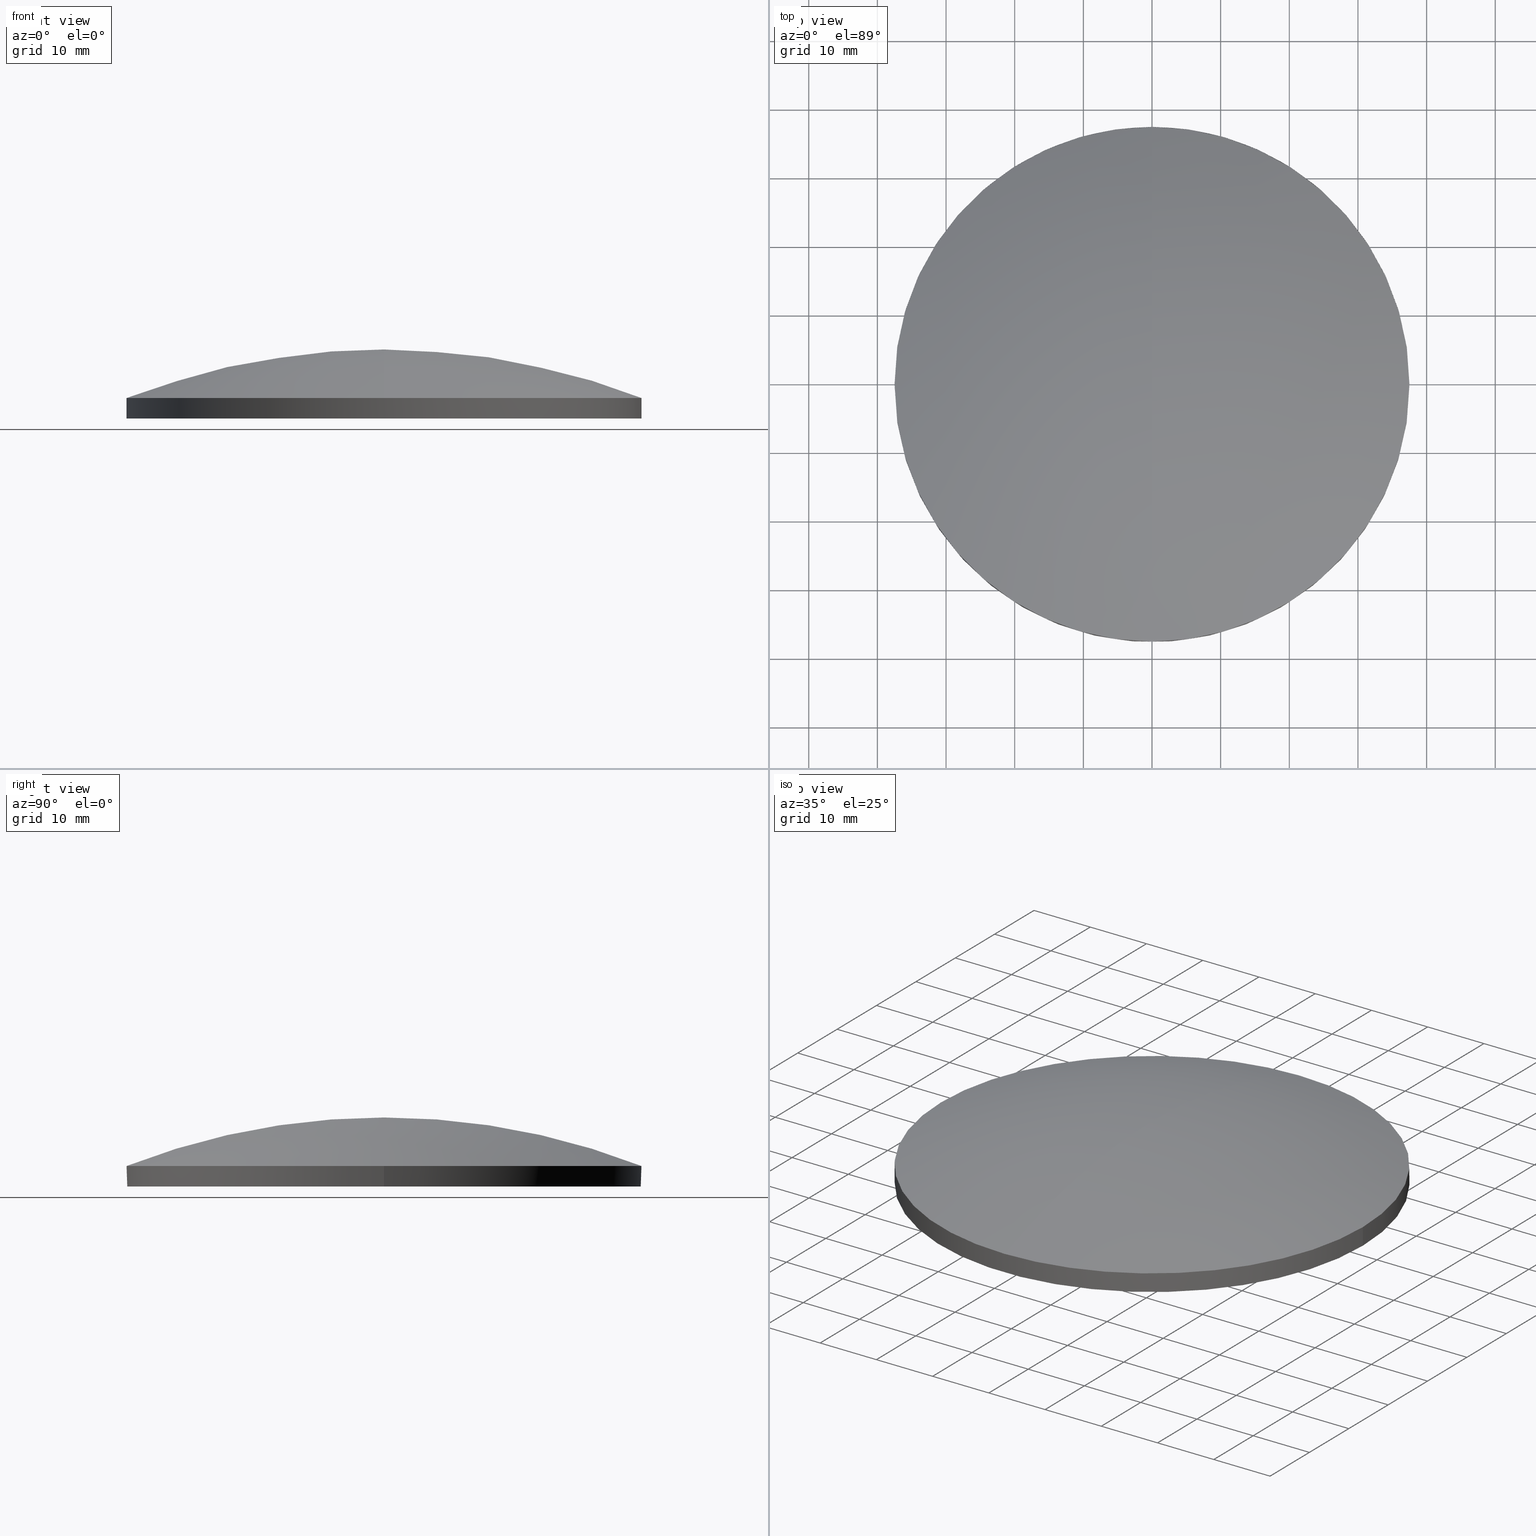
[diagram: canonical four-view strip — front | top / right | iso, engineering-drawing reading convention]
A machine part, canonical four-view strip (front | top / right | iso — engineering-drawing reading convention). The complete STEP part file that produces these views, byte-faithful:
ISO-10303-21;
HEADER;
FILE_DESCRIPTION (( 'STEP AP214' ),
    '1' );
FILE_NAME ('4468-E0W.STEP',
    '2009-12-21T17:02:42',
    ( ' ' ),
    ( ' ' ),
    'SwSTEP 2.0',
    'SolidWorks 2009',
    '' );
FILE_SCHEMA (( 'AUTOMOTIVE_DESIGN' ));
ENDSEC;

DATA;
#1 =( GEOMETRIC_REPRESENTATION_CONTEXT ( 3 ) GLOBAL_UNCERTAINTY_ASSIGNED_CONTEXT ( ( #44 ) ) GLOBAL_UNIT_ASSIGNED_CONTEXT ( ( #91, #46, #45 ) ) REPRESENTATION_CONTEXT ( 'NONE', 'WORKASPACE' ) );
#2 = AXIS2_PLACEMENT_3D ( 'NONE', #3, #4, #5 ) ;
#3 = CARTESIAN_POINT ( 'NONE',  ( 0.0000000000000000000, 0.0000000000000000000, 4.308132045400366600 ) ) ;
#4 = DIRECTION ( 'NONE',  ( -0.0000000000000000000, -0.0000000000000000000, 1.000000000000000000 ) ) ;
#5 = DIRECTION ( 'NONE',  ( 1.000000000000000000, 0.0000000000000000000, 0.0000000000000000000 ) ) ;
#6 = STYLED_ITEM ( 'NONE', ( #8 ), #70 ) ;
#7 = PRESENTATION_LAYER_ASSIGNMENT (  '', '', ( #6 ) ) ;
#8 = PRESENTATION_STYLE_ASSIGNMENT (( #24 ) ) ;
#9 = MECHANICAL_DESIGN_GEOMETRIC_PRESENTATION_REPRESENTATION (  '', ( #6 ), #15 ) ;
#10 =( LENGTH_UNIT ( ) NAMED_UNIT ( * ) SI_UNIT ( .MILLI., .METRE. ) );
#11 = DIRECTION ( 'NONE',  ( 0.0000000000000000000, 1.000000000000000000, 0.0000000000000000000 ) ) ;
#12 = DIRECTION ( 'NONE',  ( -1.000000000000000000, 0.0000000000000000000, 0.0000000000000000000 ) ) ;
#13 =( NAMED_UNIT ( * ) PLANE_ANGLE_UNIT ( ) SI_UNIT ( $, .RADIAN. ) );
#14 =( NAMED_UNIT ( * ) SI_UNIT ( $, .STERADIAN. ) SOLID_ANGLE_UNIT ( ) );
#15 =( GEOMETRIC_REPRESENTATION_CONTEXT ( 3 ) GLOBAL_UNCERTAINTY_ASSIGNED_CONTEXT ( ( #16 ) ) GLOBAL_UNIT_ASSIGNED_CONTEXT ( ( #10, #13, #14 ) ) REPRESENTATION_CONTEXT ( 'NONE', 'WORKASPACE' ) );
#16 = UNCERTAINTY_MEASURE_WITH_UNIT (LENGTH_MEASURE( 1.000000000000000100E-005 ), #10, 'distance_accuracy_value', 'NONE');
#17 = CYLINDRICAL_SURFACE ( 'NONE', #2, 37.49999999999999300 ) ;
#18 = AXIS2_PLACEMENT_3D ( 'NONE', #20, #12, #11 ) ;
#19 = SPHERICAL_SURFACE ( 'NONE', #18, 103.0099999999999900 ) ;
#20 = CARTESIAN_POINT ( 'NONE',  ( 0.0000000000000000000, 0.0000000000000000000, -97.97999999999999000 ) ) ;
#21 = FILL_AREA_STYLE_COLOUR ( '', #22 ) ;
#22 = COLOUR_RGB ( '',0.9568627450980391500, 0.9490196078431372100, 0.9607843137254902200 ) ;
#23 = FACE_OUTER_BOUND ( 'NONE', #50, .T. ) ;
#24 = SURFACE_STYLE_USAGE ( .BOTH. , #25 ) ;
#25 = SURFACE_SIDE_STYLE ('',( #26 ) ) ;
#26 = SURFACE_STYLE_FILL_AREA ( #27 ) ;
#27 = FILL_AREA_STYLE ('',( #21 ) ) ;
#28 = DIRECTION ( 'NONE',  ( 0.0000000000000000000, 0.0000000000000000000, -1.000000000000000000 ) ) ;
#29 = DIRECTION ( 'NONE',  ( 1.000000000000000000, 0.0000000000000000000, 0.0000000000000000000 ) ) ;
#30 = CARTESIAN_POINT ( 'NONE',  ( 0.0000000000000000000, 0.0000000000000000000, -97.97999999999999000 ) ) ;
#31 = AXIS2_PLACEMENT_3D ( 'NONE', #30, #29, #28 ) ;
#32 = CIRCLE ( 'NONE', #31, 103.0099999999999900 ) ;
#33 = ORIENTED_EDGE ( 'NONE', *, *, #105, .T. ) ;
#34 = SURFACE_STYLE_FILL_AREA ( #35 ) ;
#35 = FILL_AREA_STYLE ('',( #36 ) ) ;
#36 = FILL_AREA_STYLE_COLOUR ( '', #37 ) ;
#37 = COLOUR_RGB ( '',0.9568627450980391500, 0.9490196078431372100, 0.9607843137254902200 ) ;
#38 = DIRECTION ( 'NONE',  ( 1.000000000000000000, 0.0000000000000000000, 0.0000000000000000000 ) ) ;
#39 = DIRECTION ( 'NONE',  ( -0.0000000000000000000, -0.0000000000000000000, 1.000000000000000000 ) ) ;
#40 = CARTESIAN_POINT ( 'NONE',  ( 0.0000000000000000000, 0.0000000000000000000, -2.038298430765758300 ) ) ;
#41 = AXIS2_PLACEMENT_3D ( 'NONE', #40, #39, #38 ) ;
#42 = CIRCLE ( 'NONE', #41, 37.50000000000000000 ) ;
#43 = FACE_OUTER_BOUND ( 'NONE', #82, .T. ) ;
#44 = UNCERTAINTY_MEASURE_WITH_UNIT (LENGTH_MEASURE( 1.000000000000000100E-005 ), #91, 'distance_accuracy_value', 'NONE');
#45 =( NAMED_UNIT ( * ) SI_UNIT ( $, .STERADIAN. ) SOLID_ANGLE_UNIT ( ) );
#46 =( NAMED_UNIT ( * ) PLANE_ANGLE_UNIT ( ) SI_UNIT ( $, .RADIAN. ) );
#47 = EDGE_CURVE ( 'NONE', #100, #63, #79, .T. ) ;
#48 = VERTEX_POINT ( 'NONE', #61 ) ;
#49 = EDGE_CURVE ( 'NONE', #48, #86, #60, .T. ) ;
#50 = EDGE_LOOP ( 'NONE', ( #71, #72, #69, #67 ) ) ;
#51 = VERTEX_POINT ( 'NONE', #53 ) ;
#52 = CARTESIAN_POINT ( 'NONE',  ( 37.50000000000000000, 0.0000000000000000000, -2.038298430765758300 ) ) ;
#53 = CARTESIAN_POINT ( 'NONE',  ( 0.0000000000000000000, 6.307335025362153200E-015, 5.030000000000006500 ) ) ;
#54 = DIRECTION ( 'NONE',  ( 1.000000000000000000, 0.0000000000000000000, 0.0000000000000000000 ) ) ;
#55 = DIRECTION ( 'NONE',  ( -0.0000000000000000000, -0.0000000000000000000, 1.000000000000000000 ) ) ;
#56 = CARTESIAN_POINT ( 'NONE',  ( 0.0000000000000000000, 0.0000000000000000000, -2.038298430765758300 ) ) ;
#57 = AXIS2_PLACEMENT_3D ( 'NONE', #56, #55, #54 ) ;
#58 = ORIENTED_EDGE ( 'NONE', *, *, #47, .T. ) ;
#59 = ORIENTED_EDGE ( 'NONE', *, *, #66, .F. ) ;
#60 = CIRCLE ( 'NONE', #57, 37.50000000000000000 ) ;
#61 = CARTESIAN_POINT ( 'NONE',  ( 0.0000000000000000000, 37.49999999999997900, -2.038298430765768100 ) ) ;
#62 = DIRECTION ( 'NONE',  ( -0.0000000000000000000, -0.0000000000000000000, 1.000000000000000000 ) ) ;
#63 = VERTEX_POINT ( 'NONE', #52 ) ;
#64 = ORIENTED_EDGE ( 'NONE', *, *, #49, .T. ) ;
#65 = EDGE_LOOP ( 'NONE', ( #64, #85, #112, #83 ) ) ;
#66 = EDGE_CURVE ( 'NONE', #111, #63, #42, .T. ) ;
#67 = ORIENTED_EDGE ( 'NONE', *, *, #73, .T. ) ;
#68 = ADVANCED_FACE ( 'NONE', ( #43 ), #17, .T. ) ;
#69 = ORIENTED_EDGE ( 'NONE', *, *, #113, .T. ) ;
#70 = ADVANCED_FACE ( 'NONE', ( #23 ), #19, .T. ) ;
#71 = ORIENTED_EDGE ( 'NONE', *, *, #84, .F. ) ;
#72 = ORIENTED_EDGE ( 'NONE', *, *, #66, .T. ) ;
#73 = EDGE_CURVE ( 'NONE', #48, #51, #32, .T. ) ;
#74 = MANIFOLD_SOLID_BREP ( 'NONE', #80 ) ;
#75 = ORIENTED_EDGE ( 'NONE', *, *, #102, .T. ) ;
#76 = EDGE_LOOP ( 'NONE', ( #107, #81 ) ) ;
#77 = VECTOR ( 'NONE', #62, 1000.000000000000000 ) ;
#78 = CARTESIAN_POINT ( 'NONE',  ( 37.49999999999999300, 0.0000000000000000000, 4.308132045400366600 ) ) ;
#79 = LINE ( 'NONE', #78, #77 ) ;
#80 = CLOSED_SHELL ( 'NONE', ( #109, #87, #70, #68, #106 ) ) ;
#81 = ORIENTED_EDGE ( 'NONE', *, *, #105, .F. ) ;
#82 = EDGE_LOOP ( 'NONE', ( #101, #33, #58, #59, #90 ) ) ;
#83 = ORIENTED_EDGE ( 'NONE', *, *, #73, .F. ) ;
#84 = EDGE_CURVE ( 'NONE', #111, #51, #140, .T. ) ;
#85 = ORIENTED_EDGE ( 'NONE', *, *, #110, .T. ) ;
#86 = VERTEX_POINT ( 'NONE', #135 ) ;
#87 = ADVANCED_FACE ( 'NONE', ( #134 ), #207, .T. ) ;
#88 = ORIENTED_EDGE ( 'NONE', *, *, #49, .F. ) ;
#89 = EDGE_CURVE ( 'NONE', #103, #86, #202, .T. ) ;
#90 = ORIENTED_EDGE ( 'NONE', *, *, #110, .F. ) ;
#91 =( LENGTH_UNIT ( ) NAMED_UNIT ( * ) SI_UNIT ( .MILLI., .METRE. ) );
#92 = MECHANICAL_DESIGN_GEOMETRIC_PRESENTATION_REPRESENTATION (  '', ( #94 ), #1 ) ;
#93 = PRESENTATION_LAYER_ASSIGNMENT (  '', '', ( #94 ) ) ;
#94 = STYLED_ITEM ( 'NONE', ( #95 ), #68 ) ;
#95 = PRESENTATION_STYLE_ASSIGNMENT (( #96 ) ) ;
#96 = SURFACE_STYLE_USAGE ( .BOTH. , #97 ) ;
#97 = SURFACE_SIDE_STYLE ('',( #34 ) ) ;
#98 = ORIENTED_EDGE ( 'NONE', *, *, #47, .F. ) ;
#99 = ORIENTED_EDGE ( 'NONE', *, *, #113, .F. ) ;
#100 = VERTEX_POINT ( 'NONE', #198 ) ;
#101 = ORIENTED_EDGE ( 'NONE', *, *, #89, .F. ) ;
#102 = EDGE_CURVE ( 'NONE', #100, #103, #197, .T. ) ;
#103 = VERTEX_POINT ( 'NONE', #192 ) ;
#104 = ORIENTED_EDGE ( 'NONE', *, *, #89, .T. ) ;
#105 = EDGE_CURVE ( 'NONE', #103, #100, #190, .T. ) ;
#106 = ADVANCED_FACE ( 'NONE', ( #185 ), #170, .F. ) ;
#107 = ORIENTED_EDGE ( 'NONE', *, *, #102, .F. ) ;
#108 = EDGE_LOOP ( 'NONE', ( #75, #104, #88, #99, #98 ) ) ;
#109 = ADVANCED_FACE ( 'NONE', ( #168 ), #228, .T. ) ;
#110 = EDGE_CURVE ( 'NONE', #86, #111, #227, .T. ) ;
#111 = VERTEX_POINT ( 'NONE', #218 ) ;
#112 = ORIENTED_EDGE ( 'NONE', *, *, #84, .T. ) ;
#113 = EDGE_CURVE ( 'NONE', #63, #48, #217, .T. ) ;
#114 = PRODUCT_DEFINITION_SHAPE ( 'NONE', 'NONE',  #117 ) ;
#115 = PRODUCT_RELATED_PRODUCT_CATEGORY ( 'part', '', ( #121 ) ) ;
#116 = PRODUCT_DEFINITION_FORMATION_WITH_SPECIFIED_SOURCE ( 'ANY', '', #121, .NOT_KNOWN. ) ;
#117 = PRODUCT_DEFINITION ( 'UNKNOWN', '', #116, #118 ) ;
#118 = PRODUCT_DEFINITION_CONTEXT ( 'detailed design', #120, 'design' ) ;
#119 = APPLICATION_PROTOCOL_DEFINITION ( 'draft international standard', 'automotive_design', 1998, #120 ) ;
#120 = APPLICATION_CONTEXT ( 'automotive_design' ) ;
#121 = PRODUCT ( '4468-E0W', '4468-E0W', '', ( #122 ) ) ;
#122 = PRODUCT_CONTEXT ( 'NONE', #253, 'mechanical' ) ;
#123 = APPLICATION_PROTOCOL_DEFINITION ( 'draft international standard', 'automotive_design', 1998, #253 ) ;
#124 = MECHANICAL_DESIGN_GEOMETRIC_PRESENTATION_REPRESENTATION (  '', ( #126 ), #208 ) ;
#125 = PRESENTATION_LAYER_ASSIGNMENT (  '', '', ( #126 ) ) ;
#126 = STYLED_ITEM ( 'NONE', ( #127 ), #87 ) ;
#127 = PRESENTATION_STYLE_ASSIGNMENT (( #128 ) ) ;
#128 = SURFACE_STYLE_USAGE ( .BOTH. , #129 ) ;
#129 = SURFACE_SIDE_STYLE ('',( #130 ) ) ;
#130 = SURFACE_STYLE_FILL_AREA ( #131 ) ;
#131 = FILL_AREA_STYLE ('',( #132 ) ) ;
#132 = FILL_AREA_STYLE_COLOUR ( '', #133 ) ;
#133 = COLOUR_RGB ( '',0.9568627450980391500, 0.9490196078431372100, 0.9607843137254902200 ) ;
#134 = FACE_OUTER_BOUND ( 'NONE', #65, .T. ) ;
#135 = CARTESIAN_POINT ( 'NONE',  ( -37.50000000000000000, 4.592273826833913900E-015, -2.038298430765758300 ) ) ;
#136 = DIRECTION ( 'NONE',  ( -1.224606353822377300E-016, -1.000000000000000000, 0.0000000000000000000 ) ) ;
#137 = DIRECTION ( 'NONE',  ( -1.000000000000000000, 1.224606353822377300E-016, 0.0000000000000000000 ) ) ;
#138 = CARTESIAN_POINT ( 'NONE',  ( 0.0000000000000000000, 0.0000000000000000000, -97.97999999999999000 ) ) ;
#139 = AXIS2_PLACEMENT_3D ( 'NONE', #138, #137, #136 ) ;
#140 = CIRCLE ( 'NONE', #139, 103.0099999999999900 ) ;
#141 =( GEOMETRIC_REPRESENTATION_CONTEXT ( 3 ) GLOBAL_UNCERTAINTY_ASSIGNED_CONTEXT ( ( #142 ) ) GLOBAL_UNIT_ASSIGNED_CONTEXT ( ( #145, #144, #143 ) ) REPRESENTATION_CONTEXT ( 'NONE', 'WORKASPACE' ) );
#142 = UNCERTAINTY_MEASURE_WITH_UNIT (LENGTH_MEASURE( 1.000000000000000100E-005 ), #145, 'distance_accuracy_value', 'NONE');
#143 =( NAMED_UNIT ( * ) SI_UNIT ( $, .STERADIAN. ) SOLID_ANGLE_UNIT ( ) );
#144 =( NAMED_UNIT ( * ) PLANE_ANGLE_UNIT ( ) SI_UNIT ( $, .RADIAN. ) );
#145 =( LENGTH_UNIT ( ) NAMED_UNIT ( * ) SI_UNIT ( .MILLI., .METRE. ) );
#146 = MECHANICAL_DESIGN_GEOMETRIC_PRESENTATION_REPRESENTATION (  '', ( #148 ), #141 ) ;
#147 = PRESENTATION_LAYER_ASSIGNMENT (  '', '', ( #148 ) ) ;
#148 = STYLED_ITEM ( 'NONE', ( #149 ), #74 ) ;
#149 = PRESENTATION_STYLE_ASSIGNMENT (( #150 ) ) ;
#150 = SURFACE_STYLE_USAGE ( .BOTH. , #151 ) ;
#151 = SURFACE_SIDE_STYLE ('',( #152 ) ) ;
#152 = SURFACE_STYLE_FILL_AREA ( #153 ) ;
#153 = FILL_AREA_STYLE ('',( #154 ) ) ;
#154 = FILL_AREA_STYLE_COLOUR ( '', #155 ) ;
#155 = COLOUR_RGB ( '',0.7960784313725489700, 0.8235294117647058400, 0.9372549019607843100 ) ;
#156 = PRESENTATION_LAYER_ASSIGNMENT (  '', '', ( #157 ) ) ;
#157 = STYLED_ITEM ( 'NONE', ( #158 ), #109 ) ;
#158 = PRESENTATION_STYLE_ASSIGNMENT (( #159 ) ) ;
#159 = SURFACE_STYLE_USAGE ( .BOTH. , #160 ) ;
#160 = SURFACE_SIDE_STYLE ('',( #161 ) ) ;
#161 = SURFACE_STYLE_FILL_AREA ( #162 ) ;
#162 = FILL_AREA_STYLE ('',( #169 ) ) ;
#163 = COLOUR_RGB ( '',0.9568627450980391500, 0.9490196078431372100, 0.9607843137254902200 ) ;
#164 = DIRECTION ( 'NONE',  ( 1.000000000000000000, 0.0000000000000000000, 0.0000000000000000000 ) ) ;
#165 = DIRECTION ( 'NONE',  ( 0.0000000000000000000, -0.0000000000000000000, 1.000000000000000000 ) ) ;
#166 = CARTESIAN_POINT ( 'NONE',  ( 0.0000000000000000000, 1.847992019913356200E-015, -5.029999999999999400 ) ) ;
#167 = AXIS2_PLACEMENT_3D ( 'NONE', #166, #165, #164 ) ;
#168 = FACE_OUTER_BOUND ( 'NONE', #108, .T. ) ;
#169 = FILL_AREA_STYLE_COLOUR ( '', #163 ) ;
#170 = PLANE ( 'NONE',  #167 ) ;
#171 =( GEOMETRIC_REPRESENTATION_CONTEXT ( 3 ) GLOBAL_UNCERTAINTY_ASSIGNED_CONTEXT ( ( #172 ) ) GLOBAL_UNIT_ASSIGNED_CONTEXT ( ( #175, #174, #173 ) ) REPRESENTATION_CONTEXT ( 'NONE', 'WORKASPACE' ) );
#172 = UNCERTAINTY_MEASURE_WITH_UNIT (LENGTH_MEASURE( 1.000000000000000100E-005 ), #175, 'distance_accuracy_value', 'NONE');
#173 =( NAMED_UNIT ( * ) SI_UNIT ( $, .STERADIAN. ) SOLID_ANGLE_UNIT ( ) );
#174 =( NAMED_UNIT ( * ) PLANE_ANGLE_UNIT ( ) SI_UNIT ( $, .RADIAN. ) );
#175 =( LENGTH_UNIT ( ) NAMED_UNIT ( * ) SI_UNIT ( .MILLI., .METRE. ) );
#176 = MECHANICAL_DESIGN_GEOMETRIC_PRESENTATION_REPRESENTATION (  '', ( #178 ), #171 ) ;
#177 = PRESENTATION_LAYER_ASSIGNMENT (  '', '', ( #178 ) ) ;
#178 = STYLED_ITEM ( 'NONE', ( #179 ), #106 ) ;
#179 = PRESENTATION_STYLE_ASSIGNMENT (( #180 ) ) ;
#180 = SURFACE_STYLE_USAGE ( .BOTH. , #181 ) ;
#181 = SURFACE_SIDE_STYLE ('',( #182 ) ) ;
#182 = SURFACE_STYLE_FILL_AREA ( #183 ) ;
#183 = FILL_AREA_STYLE ('',( #191 ) ) ;
#184 = COLOUR_RGB ( '',0.9568627450980391500, 0.9490196078431372100, 0.9607843137254902200 ) ;
#185 = FACE_OUTER_BOUND ( 'NONE', #76, .T. ) ;
#186 = DIRECTION ( 'NONE',  ( 1.000000000000000000, 0.0000000000000000000, 0.0000000000000000000 ) ) ;
#187 = DIRECTION ( 'NONE',  ( -0.0000000000000000000, -0.0000000000000000000, 1.000000000000000000 ) ) ;
#188 = CARTESIAN_POINT ( 'NONE',  ( 0.0000000000000000000, 0.0000000000000000000, -5.029999999999999400 ) ) ;
#189 = AXIS2_PLACEMENT_3D ( 'NONE', #188, #187, #186 ) ;
#190 = CIRCLE ( 'NONE', #189, 37.49999999999999300 ) ;
#191 = FILL_AREA_STYLE_COLOUR ( '', #184 ) ;
#192 = CARTESIAN_POINT ( 'NONE',  ( -37.49999999999999300, 4.592273826833913100E-015, -5.029999999999999400 ) ) ;
#193 = DIRECTION ( 'NONE',  ( 1.000000000000000000, 0.0000000000000000000, 0.0000000000000000000 ) ) ;
#194 = DIRECTION ( 'NONE',  ( -0.0000000000000000000, -0.0000000000000000000, 1.000000000000000000 ) ) ;
#195 = CARTESIAN_POINT ( 'NONE',  ( 0.0000000000000000000, 0.0000000000000000000, -5.029999999999999400 ) ) ;
#196 = AXIS2_PLACEMENT_3D ( 'NONE', #195, #194, #193 ) ;
#197 = CIRCLE ( 'NONE', #196, 37.49999999999999300 ) ;
#198 = CARTESIAN_POINT ( 'NONE',  ( 37.49999999999999300, 0.0000000000000000000, -5.029999999999999400 ) ) ;
#199 = DIRECTION ( 'NONE',  ( -0.0000000000000000000, -0.0000000000000000000, 1.000000000000000000 ) ) ;
#200 = VECTOR ( 'NONE', #199, 1000.000000000000000 ) ;
#201 = CARTESIAN_POINT ( 'NONE',  ( -37.49999999999999300, 4.592273826833913100E-015, 4.308132045400366600 ) ) ;
#202 = LINE ( 'NONE', #201, #200 ) ;
#203 = DIRECTION ( 'NONE',  ( 0.0000000000000000000, 1.000000000000000000, 0.0000000000000000000 ) ) ;
#204 = DIRECTION ( 'NONE',  ( -1.000000000000000000, 0.0000000000000000000, 0.0000000000000000000 ) ) ;
#205 = CARTESIAN_POINT ( 'NONE',  ( 0.0000000000000000000, 0.0000000000000000000, -97.97999999999999000 ) ) ;
#206 = AXIS2_PLACEMENT_3D ( 'NONE', #205, #204, #203 ) ;
#207 = SPHERICAL_SURFACE ( 'NONE', #206, 103.0099999999999900 ) ;
#208 =( GEOMETRIC_REPRESENTATION_CONTEXT ( 3 ) GLOBAL_UNCERTAINTY_ASSIGNED_CONTEXT ( ( #209 ) ) GLOBAL_UNIT_ASSIGNED_CONTEXT ( ( #212, #211, #210 ) ) REPRESENTATION_CONTEXT ( 'NONE', 'WORKASPACE' ) );
#209 = UNCERTAINTY_MEASURE_WITH_UNIT (LENGTH_MEASURE( 1.000000000000000100E-005 ), #212, 'distance_accuracy_value', 'NONE');
#210 =( NAMED_UNIT ( * ) SI_UNIT ( $, .STERADIAN. ) SOLID_ANGLE_UNIT ( ) );
#211 =( NAMED_UNIT ( * ) PLANE_ANGLE_UNIT ( ) SI_UNIT ( $, .RADIAN. ) );
#212 =( LENGTH_UNIT ( ) NAMED_UNIT ( * ) SI_UNIT ( .MILLI., .METRE. ) );
#213 = DIRECTION ( 'NONE',  ( 1.000000000000000000, 0.0000000000000000000, 0.0000000000000000000 ) ) ;
#214 = DIRECTION ( 'NONE',  ( -0.0000000000000000000, -0.0000000000000000000, 1.000000000000000000 ) ) ;
#215 = CARTESIAN_POINT ( 'NONE',  ( 0.0000000000000000000, 0.0000000000000000000, -2.038298430765758300 ) ) ;
#216 = AXIS2_PLACEMENT_3D ( 'NONE', #215, #214, #213 ) ;
#217 = CIRCLE ( 'NONE', #216, 37.50000000000000000 ) ;
#218 = CARTESIAN_POINT ( 'NONE',  ( -4.592273826833911600E-015, -37.49999999999997900, -2.038298430765768100 ) ) ;
#219 = DIRECTION ( 'NONE',  ( 1.000000000000000000, 0.0000000000000000000, 0.0000000000000000000 ) ) ;
#220 = DIRECTION ( 'NONE',  ( -0.0000000000000000000, -0.0000000000000000000, 1.000000000000000000 ) ) ;
#221 = CARTESIAN_POINT ( 'NONE',  ( 0.0000000000000000000, 0.0000000000000000000, -2.038298430765758300 ) ) ;
#222 = AXIS2_PLACEMENT_3D ( 'NONE', #221, #220, #219 ) ;
#223 = DIRECTION ( 'NONE',  ( 1.000000000000000000, 0.0000000000000000000, 0.0000000000000000000 ) ) ;
#224 = DIRECTION ( 'NONE',  ( -0.0000000000000000000, -0.0000000000000000000, 1.000000000000000000 ) ) ;
#225 = CARTESIAN_POINT ( 'NONE',  ( 0.0000000000000000000, 0.0000000000000000000, 4.308132045400366600 ) ) ;
#226 = AXIS2_PLACEMENT_3D ( 'NONE', #225, #224, #223 ) ;
#227 = CIRCLE ( 'NONE', #222, 37.50000000000000000 ) ;
#228 = CYLINDRICAL_SURFACE ( 'NONE', #226, 37.49999999999999300 ) ;
#229 =( GEOMETRIC_REPRESENTATION_CONTEXT ( 3 ) GLOBAL_UNCERTAINTY_ASSIGNED_CONTEXT ( ( #230 ) ) GLOBAL_UNIT_ASSIGNED_CONTEXT ( ( #233, #232, #231 ) ) REPRESENTATION_CONTEXT ( 'NONE', 'WORKASPACE' ) );
#230 = UNCERTAINTY_MEASURE_WITH_UNIT (LENGTH_MEASURE( 1.000000000000000100E-005 ), #233, 'distance_accuracy_value', 'NONE');
#231 =( NAMED_UNIT ( * ) SI_UNIT ( $, .STERADIAN. ) SOLID_ANGLE_UNIT ( ) );
#232 =( NAMED_UNIT ( * ) PLANE_ANGLE_UNIT ( ) SI_UNIT ( $, .RADIAN. ) );
#233 =( LENGTH_UNIT ( ) NAMED_UNIT ( * ) SI_UNIT ( .MILLI., .METRE. ) );
#234 = MECHANICAL_DESIGN_GEOMETRIC_PRESENTATION_REPRESENTATION (  '', ( #157 ), #229 ) ;
#235 = DIRECTION ( 'NONE',  ( 1.000000000000000000, 0.0000000000000000000, 0.0000000000000000000 ) ) ;
#236 = DIRECTION ( 'NONE',  ( 0.0000000000000000000, 0.0000000000000000000, 1.000000000000000000 ) ) ;
#237 = AXIS2_PLACEMENT_3D ( 'NONE', #261, #236, #235 ) ;
#238 =( GEOMETRIC_REPRESENTATION_CONTEXT ( 3 ) GLOBAL_UNCERTAINTY_ASSIGNED_CONTEXT ( ( #239 ) ) GLOBAL_UNIT_ASSIGNED_CONTEXT ( ( #242, #241, #240 ) ) REPRESENTATION_CONTEXT ( 'NONE', 'WORKASPACE' ) );
#239 = UNCERTAINTY_MEASURE_WITH_UNIT (LENGTH_MEASURE( 1.000000000000000100E-005 ), #242, 'distance_accuracy_value', 'NONE');
#240 =( NAMED_UNIT ( * ) SI_UNIT ( $, .STERADIAN. ) SOLID_ANGLE_UNIT ( ) );
#241 =( NAMED_UNIT ( * ) PLANE_ANGLE_UNIT ( ) SI_UNIT ( $, .RADIAN. ) );
#242 =( LENGTH_UNIT ( ) NAMED_UNIT ( * ) SI_UNIT ( .MILLI., .METRE. ) );
#243 = MECHANICAL_DESIGN_GEOMETRIC_PRESENTATION_REPRESENTATION (  '', ( #245 ), #238 ) ;
#244 = PRESENTATION_LAYER_ASSIGNMENT (  '', '', ( #245 ) ) ;
#245 = STYLED_ITEM ( 'NONE', ( #246 ), #255 ) ;
#246 = PRESENTATION_STYLE_ASSIGNMENT (( #247 ) ) ;
#247 = SURFACE_STYLE_USAGE ( .BOTH. , #248 ) ;
#248 = SURFACE_SIDE_STYLE ('',( #249 ) ) ;
#249 = SURFACE_STYLE_FILL_AREA ( #250 ) ;
#250 = FILL_AREA_STYLE ('',( #251 ) ) ;
#251 = FILL_AREA_STYLE_COLOUR ( '', #252 ) ;
#252 = COLOUR_RGB ( '',0.7960784313725489700, 0.8235294117647058400, 0.9372549019607843100 ) ;
#253 = APPLICATION_CONTEXT ( 'automotive_design' ) ;
#254 = SHAPE_DEFINITION_REPRESENTATION ( #114, #255 ) ;
#255 = ADVANCED_BREP_SHAPE_REPRESENTATION ( '4468-E0W', ( #74, #237 ), #256 ) ;
#256 =( GEOMETRIC_REPRESENTATION_CONTEXT ( 3 ) GLOBAL_UNCERTAINTY_ASSIGNED_CONTEXT ( ( #257 ) ) GLOBAL_UNIT_ASSIGNED_CONTEXT ( ( #260, #259, #258 ) ) REPRESENTATION_CONTEXT ( 'NONE', 'WORKASPACE' ) );
#257 = UNCERTAINTY_MEASURE_WITH_UNIT (LENGTH_MEASURE( 1.000000000000000100E-005 ), #260, 'distance_accuracy_value', 'NONE');
#258 =( NAMED_UNIT ( * ) SI_UNIT ( $, .STERADIAN. ) SOLID_ANGLE_UNIT ( ) );
#259 =( NAMED_UNIT ( * ) PLANE_ANGLE_UNIT ( ) SI_UNIT ( $, .RADIAN. ) );
#260 =( LENGTH_UNIT ( ) NAMED_UNIT ( * ) SI_UNIT ( .MILLI., .METRE. ) );
#261 = CARTESIAN_POINT ( 'NONE',  ( 0.0000000000000000000, 0.0000000000000000000, 0.0000000000000000000 ) ) ;
ENDSEC;
END-ISO-10303-21;
